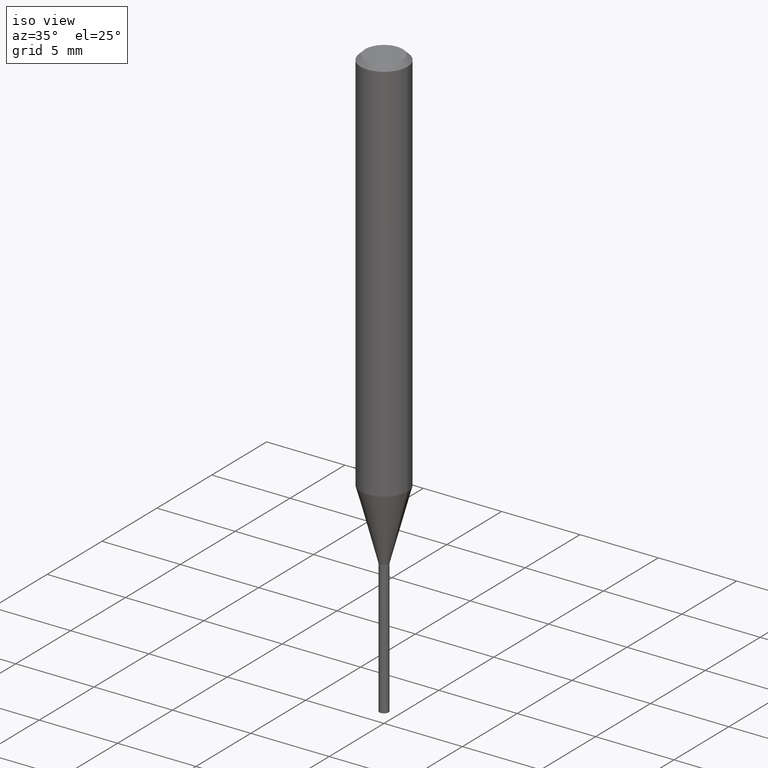
[diagram: clean part render]
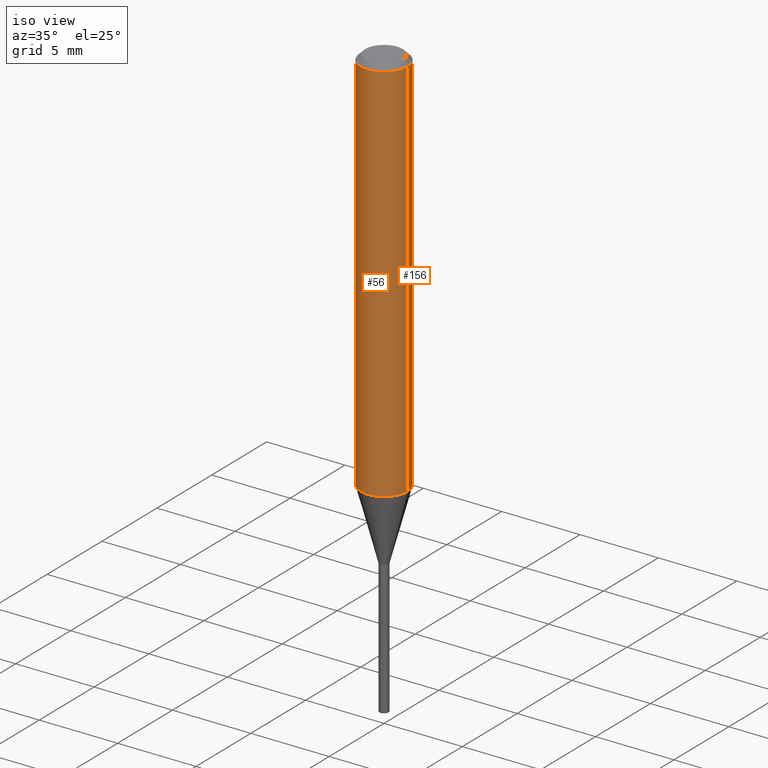
[diagram: same view with one multi-face feature highlighted, each face labeled with its STEP entity id]
A machine part, iso view. The highlighted faces form ONE feature: a constant-radius fillet chain: 2 tangent blend faces with common blend radius 1.4999 mm. The faces share edges in the B-rep.
Their STEP definitions:
[1] entity #156 (Cylinder):
#1 = CARTESIAN_POINT ( 'NONE',  ( 0.05904999999999999832, -4.535783407291118600E-16, -0.01181000000000007565 ) ) ;
#37 = LINE ( 'NONE', #107, #436 ) ;
#41 = CARTESIAN_POINT ( 'NONE',  ( 0.000000000000000000, 0.000000000000000000, 0.000000000000000000 ) ) ;
#69 = CIRCLE ( 'NONE', #361, 0.05905000000000013710 ) ;
#87 = EDGE_CURVE ( 'NONE', #426, #121, #37, .T. ) ;
#90 = EDGE_CURVE ( 'NONE', #127, #426, #69, .T. ) ;
#99 = CARTESIAN_POINT ( 'NONE',  ( -0.05905000000000015098, -2.989045246693538813E-15, -0.9762677790193426963 ) ) ;
#107 = CARTESIAN_POINT ( 'NONE',  ( -0.05905000000000006771, 4.195754854663396409E-16, -2.904631170795525045E-30 ) ) ;
#121 = VERTEX_POINT ( 'NONE', #226 ) ;
#127 = VERTEX_POINT ( 'NONE', #451 ) ;
#155 = CARTESIAN_POINT ( 'NONE',  ( 2.387432400075446825E-29, -3.408620732159878700E-15, -0.9762677790193426963 ) ) ;
#156 = ADVANCED_FACE ( 'NONE', ( #161 ), #386, .T. ) ;
#161 = FACE_OUTER_BOUND ( 'NONE', #384, .T. ) ;
#176 = EDGE_CURVE ( 'NONE', #127, #325, #310, .T. ) ;
#189 = DIRECTION ( 'NONE',  ( -2.445468806185136877E-29, 3.491481338843145188E-15, 1.000000000000000000 ) ) ;
#209 = EDGE_CURVE ( 'NONE', #325, #121, #280, .T. ) ;
#223 = DIRECTION ( 'NONE',  ( -2.445468806185136597E-29, 3.491481338843145583E-15, 1.000000000000000000 ) ) ;
#226 = CARTESIAN_POINT ( 'NONE',  ( -0.05904999999999999832, -1.305352077919467933E-15, -0.01181000000000007565 ) ) ;
#245 = ORIENTED_EDGE ( 'NONE', *, *, #209, .F. ) ;
#276 = ORIENTED_EDGE ( 'NONE', *, *, #90, .T. ) ;
#280 = CIRCLE ( 'NONE', #460, 0.05904999999999999832 ) ;
#295 = DIRECTION ( 'NONE',  ( 1.000000000000000000, -6.982962677686266711E-15, 0.000000000000000000 ) ) ;
#310 = LINE ( 'NONE', #350, #365 ) ;
#325 = VERTEX_POINT ( 'NONE', #1 ) ;
#337 = CARTESIAN_POINT ( 'NONE',  ( 2.888098660104664642E-31, -4.123439461173780879E-17, -0.01181000000000007565 ) ) ;
#343 = DIRECTION ( 'NONE',  ( -2.445468806185136597E-29, 3.491481338843145583E-15, 1.000000000000000000 ) ) ;
#350 = CARTESIAN_POINT ( 'NONE',  ( 0.05905000000000006771, -4.123439461173745257E-16, 2.879382386107503723E-30 ) ) ;
#361 = AXIS2_PLACEMENT_3D ( 'NONE', #155, #343, #447 ) ;
#365 = VECTOR ( 'NONE', #412, 39.37007874015748143 ) ;
#384 = EDGE_LOOP ( 'NONE', ( #276, #469, #245, #468 ) ) ;
#386 = CYLINDRICAL_SURFACE ( 'NONE', #422, 0.05905000000000006771 ) ;
#410 = DIRECTION ( 'NONE',  ( -2.445468806185136597E-29, 3.491481338843145583E-15, 1.000000000000000000 ) ) ;
#412 = DIRECTION ( 'NONE',  ( -2.445468806185136877E-29, 3.491481338843145188E-15, 1.000000000000000000 ) ) ;
#422 = AXIS2_PLACEMENT_3D ( 'NONE', #41, #223, #444 ) ;
#426 = VERTEX_POINT ( 'NONE', #99 ) ;
#436 = VECTOR ( 'NONE', #189, 39.37007874015748143 ) ;
#444 = DIRECTION ( 'NONE',  ( 1.000000000000000000, -6.982962677686266711E-15, 4.876176775795936353E-29 ) ) ;
#447 = DIRECTION ( 'NONE',  ( 1.000000000000000000, -6.982962677686264344E-15, 0.000000000000000000 ) ) ;
#451 = CARTESIAN_POINT ( 'NONE',  ( 0.05905000000000015098, -3.820964678277253620E-15, -0.9762677790193426963 ) ) ;
#460 = AXIS2_PLACEMENT_3D ( 'NONE', #337, #410, #295 ) ;
#468 = ORIENTED_EDGE ( 'NONE', *, *, #176, .F. ) ;
#469 = ORIENTED_EDGE ( 'NONE', *, *, #87, .T. ) ;
[2] entity #56 (Cylinder):
#1 = CARTESIAN_POINT ( 'NONE',  ( 0.05904999999999999832, -4.535783407291118600E-16, -0.01181000000000007565 ) ) ;
#34 = CIRCLE ( 'NONE', #93, 0.05905000000000013710 ) ;
#37 = LINE ( 'NONE', #107, #436 ) ;
#38 = EDGE_CURVE ( 'NONE', #426, #127, #34, .T. ) ;
#56 = ADVANCED_FACE ( 'NONE', ( #297 ), #66, .T. ) ;
#62 = DIRECTION ( 'NONE',  ( -2.445468806185136597E-29, 3.491481338843145583E-15, 1.000000000000000000 ) ) ;
#66 = CYLINDRICAL_SURFACE ( 'NONE', #381, 0.05905000000000006771 ) ;
#87 = EDGE_CURVE ( 'NONE', #426, #121, #37, .T. ) ;
#93 = AXIS2_PLACEMENT_3D ( 'NONE', #407, #62, #212 ) ;
#99 = CARTESIAN_POINT ( 'NONE',  ( -0.05905000000000015098, -2.989045246693538813E-15, -0.9762677790193426963 ) ) ;
#107 = CARTESIAN_POINT ( 'NONE',  ( -0.05905000000000006771, 4.195754854663396409E-16, -2.904631170795525045E-30 ) ) ;
#113 = CIRCLE ( 'NONE', #236, 0.05904999999999999832 ) ;
#121 = VERTEX_POINT ( 'NONE', #226 ) ;
#127 = VERTEX_POINT ( 'NONE', #451 ) ;
#176 = EDGE_CURVE ( 'NONE', #127, #325, #310, .T. ) ;
#177 = DIRECTION ( 'NONE',  ( 1.000000000000000000, -6.982962677686266711E-15, 4.876176775795936353E-29 ) ) ;
#189 = DIRECTION ( 'NONE',  ( -2.445468806185136877E-29, 3.491481338843145188E-15, 1.000000000000000000 ) ) ;
#199 = DIRECTION ( 'NONE',  ( -2.445468806185136597E-29, 3.491481338843145583E-15, 1.000000000000000000 ) ) ;
#212 = DIRECTION ( 'NONE',  ( 1.000000000000000000, -6.982962677686264344E-15, 0.000000000000000000 ) ) ;
#226 = CARTESIAN_POINT ( 'NONE',  ( -0.05904999999999999832, -1.305352077919467933E-15, -0.01181000000000007565 ) ) ;
#236 = AXIS2_PLACEMENT_3D ( 'NONE', #455, #199, #385 ) ;
#282 = EDGE_CURVE ( 'NONE', #121, #325, #113, .T. ) ;
#297 = FACE_OUTER_BOUND ( 'NONE', #348, .T. ) ;
#310 = LINE ( 'NONE', #350, #365 ) ;
#315 = ORIENTED_EDGE ( 'NONE', *, *, #38, .T. ) ;
#325 = VERTEX_POINT ( 'NONE', #1 ) ;
#348 = EDGE_LOOP ( 'NONE', ( #358, #315, #405, #477 ) ) ;
#350 = CARTESIAN_POINT ( 'NONE',  ( 0.05905000000000006771, -4.123439461173745257E-16, 2.879382386107503723E-30 ) ) ;
#358 = ORIENTED_EDGE ( 'NONE', *, *, #87, .F. ) ;
#363 = CARTESIAN_POINT ( 'NONE',  ( 0.000000000000000000, 0.000000000000000000, 0.000000000000000000 ) ) ;
#365 = VECTOR ( 'NONE', #412, 39.37007874015748143 ) ;
#381 = AXIS2_PLACEMENT_3D ( 'NONE', #363, #409, #177 ) ;
#385 = DIRECTION ( 'NONE',  ( 1.000000000000000000, -6.982962677686266711E-15, 0.000000000000000000 ) ) ;
#405 = ORIENTED_EDGE ( 'NONE', *, *, #176, .T. ) ;
#407 = CARTESIAN_POINT ( 'NONE',  ( 2.387432400075446825E-29, -3.408620732159878700E-15, -0.9762677790193426963 ) ) ;
#409 = DIRECTION ( 'NONE',  ( -2.445468806185136597E-29, 3.491481338843145583E-15, 1.000000000000000000 ) ) ;
#412 = DIRECTION ( 'NONE',  ( -2.445468806185136877E-29, 3.491481338843145188E-15, 1.000000000000000000 ) ) ;
#426 = VERTEX_POINT ( 'NONE', #99 ) ;
#436 = VECTOR ( 'NONE', #189, 39.37007874015748143 ) ;
#451 = CARTESIAN_POINT ( 'NONE',  ( 0.05905000000000015098, -3.820964678277253620E-15, -0.9762677790193426963 ) ) ;
#455 = CARTESIAN_POINT ( 'NONE',  ( 2.888098660104664642E-31, -4.123439461173780879E-17, -0.01181000000000007565 ) ) ;
#477 = ORIENTED_EDGE ( 'NONE', *, *, #282, .F. ) ;